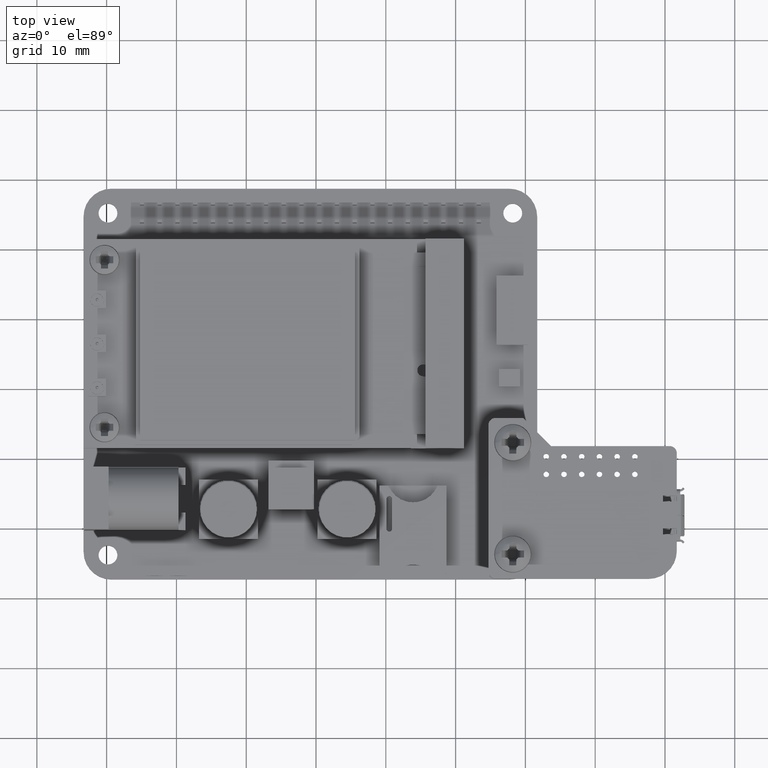
[diagram: clean part render]
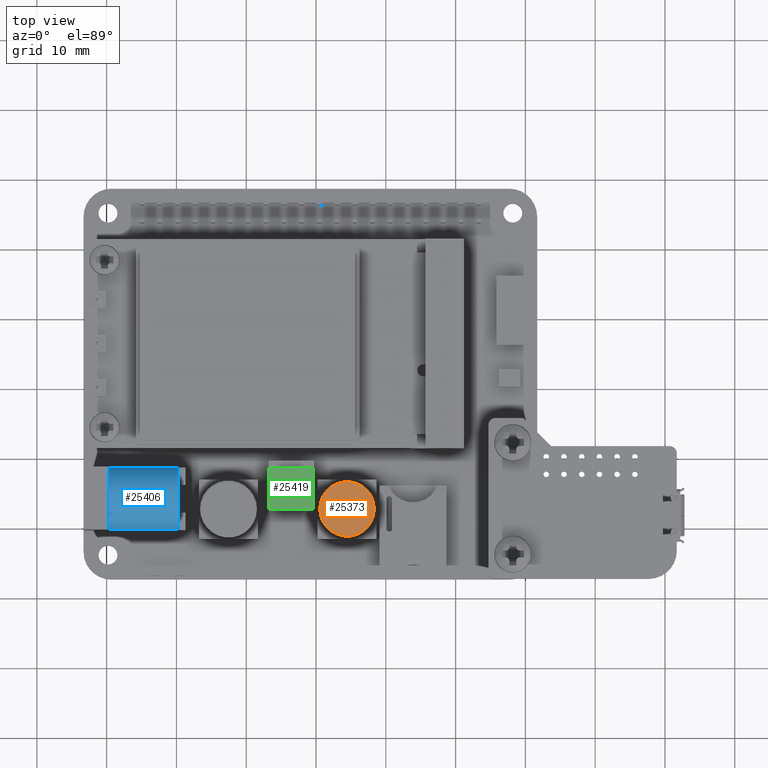
[diagram: same view with three faces highlighted in distinct colors, each labeled with its STEP entity id]
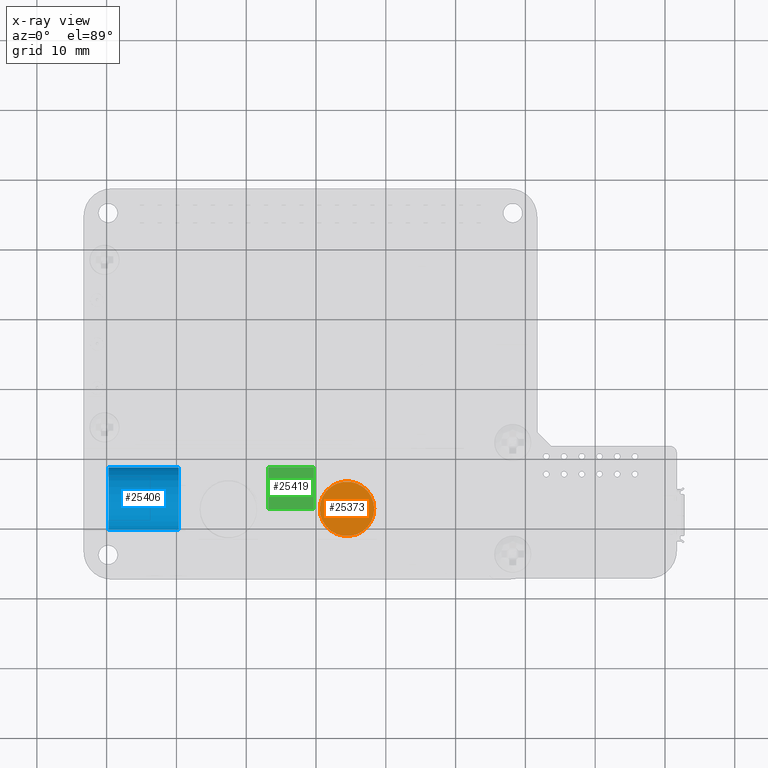
[diagram: x-ray of the same camera — body ghosted, the three highlighted faces saturated]
A machine part, top view with three faces highlighted in distinct colors.
The next image is the same camera in x-ray (body ghosted, the three faces saturated) — at least one of them is partly hidden behind the body in this view.
Their STEP definitions:

[orange] entity #25373 — the highlighted planar face has unit normal (0, 0, 1).
#6127=PLANE('',#26831);
#8691=FACE_OUTER_BOUND('',#10181,.T.);
#10181=EDGE_LOOP('',(#18525));
#11848=CIRCLE('',#26828,3.9);
#12571=VERTEX_POINT('',#36259);
#14944=EDGE_CURVE('',#12571,#12571,#11848,.T.);
#18525=ORIENTED_EDGE('',*,*,#14944,.F.);
#25373=ADVANCED_FACE('',(#8691),#6127,.T.);
#26828=AXIS2_PLACEMENT_3D('',#36260,#29101,#29102);
#26831=AXIS2_PLACEMENT_3D('',#36264,#29107,#29108);
#29101=DIRECTION('center_axis',(0.,0.,-1.));
#29102=DIRECTION('ref_axis',(-1.,0.,0.));
#29107=DIRECTION('center_axis',(0.,0.,1.));
#29108=DIRECTION('ref_axis',(1.,0.,0.));
#36259=CARTESIAN_POINT('',(9.14999999999999,-18.,7.3));
#36260=CARTESIAN_POINT('Origin',(5.24999999999999,-18.,7.3));
#36264=CARTESIAN_POINT('Origin',(5.24999999999999,-18.,7.3));

[blue] entity #25406 — the highlighted cylindrical surface (edge-blend (fillet) strip) has radius 4.4731 mm, axis along (1, 0, 0).
#512=LINE('',#36396,#3459);
#514=LINE('',#36402,#3461);
#3459=VECTOR('',#29238,10.);
#3461=VECTOR('',#29244,10.);
#7267=CYLINDRICAL_SURFACE('',#26869,4.47310381574724);
#8724=FACE_OUTER_BOUND('',#10220,.T.);
#10220=EDGE_LOOP('',(#18653,#18654,#18655,#18656));
#11855=CIRCLE('',#26870,4.47310381574724);
#11856=CIRCLE('',#26871,4.47310381574724);
#12610=VERTEX_POINT('',#36393);
#12611=VERTEX_POINT('',#36395);
#12612=VERTEX_POINT('',#36399);
#12613=VERTEX_POINT('',#36401);
#15006=EDGE_CURVE('',#12610,#12611,#512,.T.);
#15008=EDGE_CURVE('',#12612,#12610,#11855,.T.);
#15009=EDGE_CURVE('',#12612,#12613,#514,.T.);
#15010=EDGE_CURVE('',#12611,#12613,#11856,.T.);
#18653=ORIENTED_EDGE('',*,*,#15008,.F.);
#18654=ORIENTED_EDGE('',*,*,#15009,.T.);
#18655=ORIENTED_EDGE('',*,*,#15010,.F.);
#18656=ORIENTED_EDGE('',*,*,#15006,.F.);
#25406=ADVANCED_FACE('',(#8724),#7267,.T.);
#26869=AXIS2_PLACEMENT_3D('',#36398,#29240,#29241);
#26870=AXIS2_PLACEMENT_3D('',#36400,#29242,#29243);
#26871=AXIS2_PLACEMENT_3D('',#36403,#29245,#29246);
#29238=DIRECTION('',(1.,0.,0.));
#29240=DIRECTION('center_axis',(1.,0.,0.));
#29241=DIRECTION('ref_axis',(0.,1.,2.48199699885501E-16));
#29242=DIRECTION('center_axis',(-1.,0.,0.));
#29243=DIRECTION('ref_axis',(0.,1.,2.48199699885501E-16));
#29244=DIRECTION('',(1.,0.,0.));
#29245=DIRECTION('center_axis',(1.,0.,0.));
#29246=DIRECTION('ref_axis',(0.,1.,2.48199699885501E-16));
#36393=CARTESIAN_POINT('',(-28.9,-12.0537923685055,7.3));
#36395=CARTESIAN_POINT('',(-18.9,-12.0537923685055,7.3));
#36396=CARTESIAN_POINT('',(-28.9,-12.0537923685055,7.3));
#36398=CARTESIAN_POINT('Origin',(-28.9,-16.5268961842527,7.3));
#36399=CARTESIAN_POINT('',(-28.9,-21.,7.3));
#36400=CARTESIAN_POINT('Origin',(-28.9,-16.5268961842527,7.3));
#36401=CARTESIAN_POINT('',(-18.9,-21.,7.3));
#36402=CARTESIAN_POINT('',(-28.9,-21.,7.3));
#36403=CARTESIAN_POINT('Origin',(-18.9,-16.5268961842527,7.3));

[green] entity #25419 — the highlighted planar face has unit normal (0, 0, 1).
#531=LINE('',#36439,#3478);
#533=LINE('',#36443,#3480);
#535=LINE('',#36447,#3482);
#537=LINE('',#36450,#3484);
#3478=VECTOR('',#29281,10.);
#3480=VECTOR('',#29285,10.);
#3482=VECTOR('',#29289,10.);
#3484=VECTOR('',#29293,10.);
#6169=PLANE('',#26884);
#8737=FACE_OUTER_BOUND('',#10234,.T.);
#10234=EDGE_LOOP('',(#18720,#18721,#18722,#18723));
#12622=VERTEX_POINT('',#36436);
#12623=VERTEX_POINT('',#36438);
#12624=VERTEX_POINT('',#36442);
#12625=VERTEX_POINT('',#36446);
#15027=EDGE_CURVE('',#12623,#12622,#531,.T.);
#15029=EDGE_CURVE('',#12624,#12623,#533,.T.);
#15031=EDGE_CURVE('',#12625,#12624,#535,.T.);
#15033=EDGE_CURVE('',#12622,#12625,#537,.T.);
#18720=ORIENTED_EDGE('',*,*,#15033,.T.);
#18721=ORIENTED_EDGE('',*,*,#15031,.T.);
#18722=ORIENTED_EDGE('',*,*,#15029,.T.);
#18723=ORIENTED_EDGE('',*,*,#15027,.T.);
#25419=ADVANCED_FACE('',(#8737),#6169,.T.);
#26884=AXIS2_PLACEMENT_3D('',#36451,#29294,#29295);
#29281=DIRECTION('',(-6.93889390390723E-17,1.,0.));
#29285=DIRECTION('',(1.,0.,0.));
#29289=DIRECTION('',(1.85037170770859E-16,-1.,0.));
#29293=DIRECTION('',(-1.,-3.41607084500048E-16,0.));
#29294=DIRECTION('center_axis',(0.,0.,1.));
#29295=DIRECTION('ref_axis',(1.,0.,0.));
#36436=CARTESIAN_POINT('',(0.500000000000007,-12.,3.3));
#36438=CARTESIAN_POINT('',(0.500000000000007,-18.,3.3));
#36439=CARTESIAN_POINT('',(0.500000000000007,-12.,3.3));
#36442=CARTESIAN_POINT('',(-5.99999999999999,-18.,3.3));
#36443=CARTESIAN_POINT('',(0.500000000000007,-18.,3.3));
#36446=CARTESIAN_POINT('',(-5.99999999999999,-12.,3.3));
#36447=CARTESIAN_POINT('',(-5.99999999999999,-18.,3.3));
#36450=CARTESIAN_POINT('',(-5.99999999999999,-12.,3.3));
#36451=CARTESIAN_POINT('Origin',(-2.74999999999999,-15.,3.3));